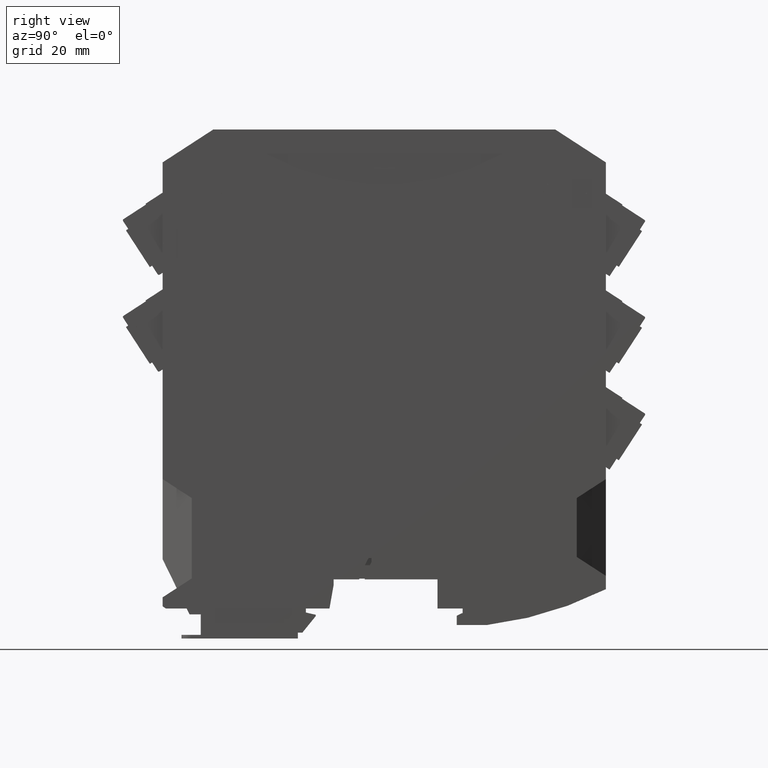
[diagram: clean part render]
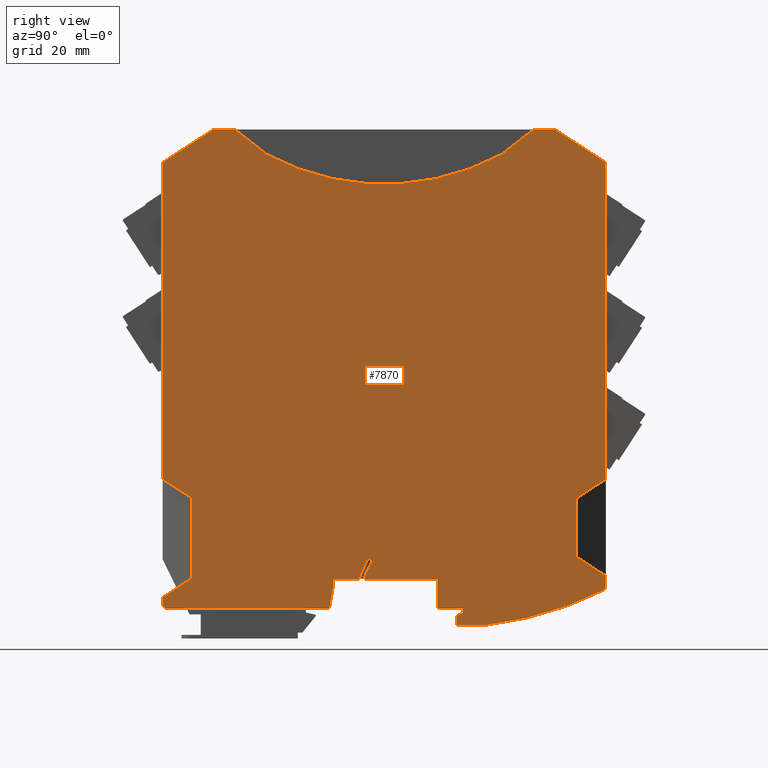
[diagram: same view with one face highlighted and labeled with its STEP entity id]
A machine part, right view. The second image highlights one B-rep face of the part: STEP entity #7870.
In plain terms, the highlighted planar face has unit normal (1, -0, -0).
Its self-contained STEP definition (entity closure, byte-faithful):
#680=CARTESIAN_POINT('',(12.5999992226559,46.5900000002596,
16.939301579675));
#690=VERTEX_POINT('',#680);
#720=CARTESIAN_POINT('',(12.5999992226559,67.0000000002411,
5.69999999991688));
#730=DIRECTION('',(1.,-5.21592700555424E-36,-2.28384227807285E-18));
#740=DIRECTION('',(-4.191076862855E-30,1.,-1.83510136361891E-12));
#750=AXIS2_PLACEMENT_3D('',#720,#730,#740);
#760=CIRCLE('',#750,23.3);
#770=CARTESIAN_POINT('',(12.5999992226559,45.149590168176,
13.7900920989472));
#780=VERTEX_POINT('',#770);
#790=EDGE_CURVE('',#690,#780,#760,.T.);
#1060=CARTESIAN_POINT('',(12.5999992226559,92.4999999996257,
18.2211493557559));
#1070=VERTEX_POINT('',#1060);
#1160=CARTESIAN_POINT('',(12.5999992226559,99.0000000003781,
14.0000000373745));
#1170=VERTEX_POINT('',#1160);
#1200=CARTESIAN_POINT('',(12.5999992226559,49.5000000003095,
46.1456756156977));
#1210=DIRECTION('',(1.24386760884534E-18,-0.838670570151032,
0.544639031618689));
#1220=VECTOR('',#1210,1.);
#1230=LINE('',#1200,#1220);
#1240=EDGE_CURVE('',#1170,#1070,#1230,.T.);
#5070=CARTESIAN_POINT('',(12.5999992226559,49.5000000000242,
70.3846654518157));
#5080=DIRECTION('',(1.,-5.21592700555424E-36,-2.28384227807285E-18));
#5090=DIRECTION('',(-4.4182643184979E-30,1.,-1.93457734662532E-12));
#5100=AXIS2_PLACEMENT_3D('',#5070,#5080,#5090);
#5110=PLANE('',#5100);
#5120=CARTESIAN_POINT('',(12.5999992226559,49.5000000004843,
138.507370060058));
#5130=DIRECTION('',(1.24386965445133E-18,0.838670567946785,
0.544639035012931));
#5140=VECTOR('',#5130,1.);
#5150=LINE('',#5120,#5140);
#5160=CARTESIAN_POINT('',(12.5999992226559,1.1974776725765E-10,
106.361694196724));
#5170=VERTEX_POINT('',#5160);
#5180=CARTESIAN_POINT('',(12.5999992226559,11.3000000004245,
113.700000000014));
#5190=VERTEX_POINT('',#5180);
#5200=EDGE_CURVE('',#5170,#5190,#5150,.T.);
#5210=ORIENTED_EDGE('',*,*,#5200,.F.);
#5220=CARTESIAN_POINT('',(12.5999992226559,49.5000000003095,
113.699999999944));
#5230=DIRECTION('',(-4.19106999653817E-30,1.,-1.83510136361891E-12));
#5240=VECTOR('',#5230,1.);
#5250=LINE('',#5220,#5240);
#5260=CARTESIAN_POINT('',(12.5999992226559,16.1795783242839,
113.700000000005));
#5270=VERTEX_POINT('',#5260);
#5280=EDGE_CURVE('',#5190,#5270,#5250,.T.);
#5290=ORIENTED_EDGE('',*,*,#5280,.F.);
#5300=CARTESIAN_POINT('',(12.5999992226559,49.5000000003095,
87.6672334752794));
#5310=DIRECTION('',(1.40607140273701E-18,-0.788010753605531,
0.615661475327183));
#5320=VECTOR('',#5310,1.);
#5330=LINE('',#5300,#5320);
#5340=CARTESIAN_POINT('',(12.5999992226559,23.1552602197003,
108.249999999974));
#5350=VERTEX_POINT('',#5340);
#5360=EDGE_CURVE('',#5350,#5270,#5330,.T.);
#5370=ORIENTED_EDGE('',*,*,#5360,.T.);
#5380=CARTESIAN_POINT('',(12.5999992226559,49.5000000003095,
87.667233475242));
#5390=DIRECTION('',(-1.40607140273701E-18,0.788010753605531,
-0.615661475327183));
#5400=VECTOR('',#5390,1.);
#5410=LINE('',#5380,#5400);
#5420=CARTESIAN_POINT('',(12.5999992226559,23.2192573012936,
108.199999999986));
#5430=VERTEX_POINT('',#5420);
#5440=EDGE_CURVE('',#5350,#5430,#5410,.T.);
#5450=ORIENTED_EDGE('',*,*,#5440,.F.);
#5460=CARTESIAN_POINT('',(12.5999992226559,49.5000000003042,
156.393092299507));
#5470=DIRECTION('',(-1.,5.21592700555424E-36,2.28384227807285E-18));
#5480=DIRECTION('',(-1.13593727821452E-31,-1.,-4.97357076646706E-14));
#5490=AXIS2_PLACEMENT_3D('',#5460,#5470,#5480);
#5500=CIRCLE('',#5490,54.8930922995028);
#5510=CARTESIAN_POINT('',(12.5999992226559,75.7980109545857,
108.209420770137));
#5520=VERTEX_POINT('',#5510);
#5530=EDGE_CURVE('',#5520,#5430,#5500,.T.);
#5540=ORIENTED_EDGE('',*,*,#5530,.T.);
#5550=CARTESIAN_POINT('',(12.5999992226559,49.5000000003095,
87.6631628058868));
#5560=DIRECTION('',(1.40607140273175E-18,0.788010753607329,
0.615661475324882));
#5570=VECTOR('',#5560,1.);
#5580=LINE('',#5550,#5570);
#5590=CARTESIAN_POINT('',(12.5999992226559,75.8499500002824,
108.249999999994));
#5600=VERTEX_POINT('',#5590);
#5610=EDGE_CURVE('',#5520,#5600,#5580,.T.);
#5620=ORIENTED_EDGE('',*,*,#5610,.F.);
#5630=CARTESIAN_POINT('',(12.5999992226559,49.5000000003095,
87.6631628058867));
#5640=DIRECTION('',(-1.40607140273175E-18,-0.788010753607329,
-0.615661475324882));
#5650=VECTOR('',#5640,1.);
#5660=LINE('',#5630,#5650);
#5670=CARTESIAN_POINT('',(12.5999992226559,82.8256318956058,
113.699999999883));
#5680=VERTEX_POINT('',#5670);
#5690=EDGE_CURVE('',#5680,#5600,#5660,.T.);
#5700=ORIENTED_EDGE('',*,*,#5690,.T.);
#5710=CARTESIAN_POINT('',(12.5999992226559,87.700000000391,
113.699999999874));
#5720=VERTEX_POINT('',#5710);
#5730=EDGE_CURVE('',#5680,#5720,#5250,.T.);
#5740=ORIENTED_EDGE('',*,*,#5730,.F.);
#5750=CARTESIAN_POINT('',(12.5999992226559,49.5000000003095,
138.507370060177));
#5760=DIRECTION('',(1.24386761660573E-18,-0.838670567944371,
0.544639035016649));
#5770=VECTOR('',#5760,1.);
#5780=LINE('',#5750,#5770);
#5790=CARTESIAN_POINT('',(12.5999992226559,99.0000000001657,
106.361694196857));
#5800=VERTEX_POINT('',#5790);
#5810=EDGE_CURVE('',#5800,#5720,#5780,.T.);
#5820=ORIENTED_EDGE('',*,*,#5810,.T.);
#5830=CARTESIAN_POINT('',(12.5999992226559,99.0000000005153,
-45.6999999999939));
#5840=DIRECTION('',(2.28384227811265E-18,-2.29927362408618E-12,1.));
#5850=VECTOR('',#5840,1.);
#5860=LINE('',#5830,#5850);
#5870=CARTESIAN_POINT('',(12.5999992226559,99.0000000003284,
35.5999999996861));
#5880=VERTEX_POINT('',#5870);
#5890=EDGE_CURVE('',#5880,#5800,#5860,.T.);
#5900=ORIENTED_EDGE('',*,*,#5890,.T.);
#5910=CARTESIAN_POINT('',(12.5999992226559,49.5000000003095,
3.45432413651742));
#5920=DIRECTION('',(1.24386761659875E-18,0.838670567946355,
0.544639035013593));
#5930=VECTOR('',#5920,1.);
#5940=LINE('',#5910,#5930);
#5950=CARTESIAN_POINT('',(12.5999992226559,92.4999999996498,
31.3788506436073));
#5960=VERTEX_POINT('',#5950);
#5970=EDGE_CURVE('',#5960,#5880,#5940,.T.);
#5980=ORIENTED_EDGE('',*,*,#5970,.T.);
#5990=CARTESIAN_POINT('',(12.599999222115,92.5000000004453,
-45.6999999999939));
#6000=DIRECTION('',(-1.96778369713401E-12,1.57319602239206E-12,-1.));
#6010=VECTOR('',#6000,1.);
#6020=LINE('',#5990,#6010);
#6030=EDGE_CURVE('',#5960,#1070,#6020,.T.);
#6040=ORIENTED_EDGE('',*,*,#6030,.F.);
#6050=ORIENTED_EDGE('',*,*,#1240,.T.);
#6060=CARTESIAN_POINT('',(12.5999992226559,99.000000000385,
11.0077156020573));
#6070=VERTEX_POINT('',#6060);
#6080=EDGE_CURVE('',#6070,#1170,#5860,.T.);
#6090=ORIENTED_EDGE('',*,*,#6080,.T.);
#6100=CARTESIAN_POINT('',(12.5999992226559,63.0000000001872,
82.4499999999246));
#6110=DIRECTION('',(-1.,5.21592700555424E-36,2.28384227807285E-18));
#6120=DIRECTION('',(4.191076862855E-30,-1.,1.83510136361891E-12));
#6130=AXIS2_PLACEMENT_3D('',#6100,#6110,#6120);
#6140=CIRCLE('',#6130,80.);
#6150=CARTESIAN_POINT('',(12.5999992226559,72.3646943356781,
2.99999999990686));
#6160=VERTEX_POINT('',#6150);
#6170=EDGE_CURVE('',#6070,#6160,#6140,.T.);
#6180=ORIENTED_EDGE('',*,*,#6170,.F.);
#6190=CARTESIAN_POINT('',(12.5999992226559,49.5000000002384,
2.99999999994881));
#6200=DIRECTION('',(-4.191076862855E-30,1.,-1.83510136361891E-12));
#6210=VECTOR('',#6200,1.);
#6220=LINE('',#6190,#6210);
#6230=CARTESIAN_POINT('',(12.5999992226559,65.7000000002348,
2.99999999991908));
#6240=VERTEX_POINT('',#6230);
#6250=EDGE_CURVE('',#6240,#6160,#6220,.T.);
#6260=ORIENTED_EDGE('',*,*,#6250,.T.);
#6270=CARTESIAN_POINT('',(12.5999992226559,65.7000000001454,
-45.7000000000849));
#6280=DIRECTION('',(-2.28384227807285E-18,-1.83510136361891E-12,-1.));
#6290=VECTOR('',#6280,1.);
#6300=LINE('',#6270,#6290);
#6310=CARTESIAN_POINT('',(12.5999992226559,65.7000000002386,
5.09380004431649));
#6320=VERTEX_POINT('',#6310);
#6330=EDGE_CURVE('',#6320,#6240,#6300,.T.);
#6340=ORIENTED_EDGE('',*,*,#6330,.T.);
#6350=CARTESIAN_POINT('',(12.5999992226559,49.5000000002279,
-2.46038401776329));
#6360=DIRECTION('',(-9.65193453645269E-19,-0.906307787037426,
-0.422618261739036));
#6370=VECTOR('',#6360,1.);
#6380=LINE('',#6350,#6370);
#6390=CARTESIAN_POINT('',(12.5999992226559,67.0000000002397,
5.69999999991562));
#6400=VERTEX_POINT('',#6390);
#6410=EDGE_CURVE('',#6400,#6320,#6380,.T.);
#6420=ORIENTED_EDGE('',*,*,#6410,.T.);
#6430=CARTESIAN_POINT('',(12.5999992226559,67.0000000001454,
-45.7000000000874));
#6440=DIRECTION('',(-2.28384227807285E-18,-1.83510136361891E-12,-1.));
#6450=VECTOR('',#6440,1.);
#6460=LINE('',#6430,#6450);
#6470=CARTESIAN_POINT('',(12.5999992226559,67.0000000002416,
6.69999999991909));
#6480=VERTEX_POINT('',#6470);
#6490=EDGE_CURVE('',#6480,#6400,#6460,.T.);
#6500=ORIENTED_EDGE('',*,*,#6490,.T.);
#6510=CARTESIAN_POINT('',(12.5999992226559,49.5000000002456,
6.6999999999496));
#6520=DIRECTION('',(-3.98011708261516E-30,1.,-1.7427308079701E-12));
#6530=VECTOR('',#6520,1.);
#6540=LINE('',#6510,#6530);
#6550=CARTESIAN_POINT('',(12.5999992226559,61.4000000002423,
6.69999999992885));
#6560=VERTEX_POINT('',#6550);
#6570=EDGE_CURVE('',#6560,#6480,#6540,.T.);
#6580=ORIENTED_EDGE('',*,*,#6570,.T.);
#6590=CARTESIAN_POINT('',(12.5999992226559,61.4000000001461,
-45.7000000000766));
#6600=DIRECTION('',(-2.28384227807285E-18,-1.83510136361891E-12,-1.));
#6610=VECTOR('',#6600,1.);
#6620=LINE('',#6590,#6610);
#6630=CARTESIAN_POINT('',(12.5999992226559,61.4000000002542,
13.1999999999263));
#6640=VERTEX_POINT('',#6630);
#6650=EDGE_CURVE('',#6640,#6560,#6620,.T.);
#6660=ORIENTED_EDGE('',*,*,#6650,.T.);
#6670=CARTESIAN_POINT('',(12.5999992226559,49.5000000002582,
13.1999999999481));
#6680=DIRECTION('',(-4.191076862855E-30,1.,-1.83510136361891E-12));
#6690=VECTOR('',#6680,1.);
#6700=LINE('',#6670,#6690);
#6710=CARTESIAN_POINT('',(12.5999992226559,45.149590168176,
13.1999999999561));
#6720=VERTEX_POINT('',#6710);
#6730=EDGE_CURVE('',#6720,#6640,#6700,.T.);
#6740=ORIENTED_EDGE('',*,*,#6730,.T.);
#6750=CARTESIAN_POINT('',(12.5999992226559,45.149590168176,
-45.6999999999939));
#6760=DIRECTION('',(-2.28384227807285E-18,-2.21443425005644E-30,-1.));
#6770=VECTOR('',#6760,1.);
#6780=LINE('',#6750,#6770);
#6790=EDGE_CURVE('',#780,#6720,#6780,.T.);
#6800=ORIENTED_EDGE('',*,*,#6790,.T.);
#6810=ORIENTED_EDGE('',*,*,#790,.T.);
#6820=CARTESIAN_POINT('',(12.5999992226559,46.5900000001446,
-45.700000000048));
#6830=DIRECTION('',(2.28384227807285E-18,1.83510136361891E-12,1.));
#6840=VECTOR('',#6830,1.);
#6850=LINE('',#6820,#6840);
#6860=CARTESIAN_POINT('',(12.5999992226559,46.5900000002614,
17.9499999999543));
#6870=VERTEX_POINT('',#6860);
#6880=EDGE_CURVE('',#690,#6870,#6850,.T.);
#6890=ORIENTED_EDGE('',*,*,#6880,.F.);
#6900=CARTESIAN_POINT('',(12.5999992226559,49.5000000002673,
17.949999999949));
#6910=DIRECTION('',(-4.191076862855E-30,1.,-1.83510136361891E-12));
#6920=VECTOR('',#6910,1.);
#6930=LINE('',#6900,#6920);
#6940=CARTESIAN_POINT('',(12.5999992226559,46.0136353793961,
17.9499999999554));
#6950=VERTEX_POINT('',#6940);
#6960=EDGE_CURVE('',#6950,#6870,#6930,.T.);
#6970=ORIENTED_EDGE('',*,*,#6960,.T.);
#6980=CARTESIAN_POINT('',(12.5999992226559,67.0000000002411,
5.69999999991688));
#6990=DIRECTION('',(1.,-5.21592700555424E-36,-2.28384227807285E-18));
#7000=DIRECTION('',(-4.191076862855E-30,1.,-1.83510136361891E-12));
#7010=AXIS2_PLACEMENT_3D('',#6980,#6990,#7000);
#7020=CIRCLE('',#7010,24.3);
#7030=CARTESIAN_POINT('',(12.5999992226559,43.8863676591447,
13.1999999999584));
#7040=VERTEX_POINT('',#7030);
#7050=EDGE_CURVE('',#6950,#7040,#7020,.T.);
#7060=ORIENTED_EDGE('',*,*,#7050,.F.);
#7070=CARTESIAN_POINT('',(12.5999992226559,49.5000000002582,
13.1999999999481));
#7080=DIRECTION('',(-4.191076862855E-30,1.,-1.83510136361891E-12));
#7090=VECTOR('',#7080,1.);
#7100=LINE('',#7070,#7090);
#7110=CARTESIAN_POINT('',(12.5999992226559,38.2000000002177,
13.1999999999688));
#7120=VERTEX_POINT('',#7110);
#7130=EDGE_CURVE('',#7120,#7040,#7100,.T.);
#7140=ORIENTED_EDGE('',*,*,#7130,.T.);
#7150=CARTESIAN_POINT('',(12.5999992226559,38.2000000001046,
-45.7000000000317));
#7160=DIRECTION('',(-2.28384227807285E-18,-1.92039736359231E-12,-1.));
#7170=VECTOR('',#7160,1.);
#7180=LINE('',#7150,#7170);
#7190=CARTESIAN_POINT('',(12.5999992226559,38.2000000002154,
11.9999999997522));
#7200=VERTEX_POINT('',#7190);
#7210=EDGE_CURVE('',#7120,#7200,#7180,.T.);
#7220=ORIENTED_EDGE('',*,*,#7210,.F.);
#7230=CARTESIAN_POINT('',(12.5999992226559,28.0259332132613,
-45.7000000000121));
#7240=DIRECTION('',(-2.24914558210242E-18,-0.173648177668871,
-0.984807753011866));
#7250=VECTOR('',#7240,1.);
#7260=LINE('',#7230,#7250);
#7270=CARTESIAN_POINT('',(12.5999992226559,37.2654670024889,
6.69999999997437));
#7280=VERTEX_POINT('',#7270);
#7290=EDGE_CURVE('',#7200,#7280,#7260,.T.);
#7300=ORIENTED_EDGE('',*,*,#7290,.F.);
#7310=CARTESIAN_POINT('',(12.5999992226559,49.5000000003095,
6.69999999995087));
#7320=DIRECTION('',(-4.3858722882793E-30,1.,-1.92039736359231E-12));
#7330=VECTOR('',#7320,1.);
#7340=LINE('',#7310,#7330);
#7350=CARTESIAN_POINT('',(12.5999992226559,0.730742699295661,
6.70000000004453));
#7360=VERTEX_POINT('',#7350);
#7370=EDGE_CURVE('',#7360,#7280,#7340,.T.);
#7380=ORIENTED_EDGE('',*,*,#7370,.T.);
#7390=CARTESIAN_POINT('',(12.5999992226559,49.5000000003095,
-24.9711260059805));
#7400=DIRECTION('',(1.24386761660599E-18,-0.838670567944297,
0.544639035016763));
#7410=VECTOR('',#7400,1.);
#7420=LINE('',#7390,#7410);
#7430=CARTESIAN_POINT('',(12.5999992226559,-4.76703121421451E-11,
7.1745498576739));
#7440=VERTEX_POINT('',#7430);
#7450=EDGE_CURVE('',#7360,#7440,#7420,.T.);
#7460=ORIENTED_EDGE('',*,*,#7450,.F.);
#7470=CARTESIAN_POINT('',(12.5999992226559,-1.62927449309791E-10,
-45.6999999999939));
#7480=DIRECTION('',(2.28384227811265E-18,1.83510136361891E-12,1.));
#7490=VECTOR('',#7480,1.);
#7500=LINE('',#7470,#7490);
#7510=CARTESIAN_POINT('',(12.5999992226559,-4.74926764582051E-11,
9.20000000000948));
#7520=VERTEX_POINT('',#7510);
#7530=EDGE_CURVE('',#7440,#7520,#7500,.T.);
#7540=ORIENTED_EDGE('',*,*,#7530,.F.);
#7550=CARTESIAN_POINT('',(12.5999992226559,49.5000000003095,
41.3456758635122));
#7560=DIRECTION('',(-1.24386761660187E-18,-0.83867056794547,
-0.544639035014957));
#7570=VECTOR('',#7560,1.);
#7580=LINE('',#7550,#7570);
#7590=CARTESIAN_POINT('',(12.5999992226346,6.50000000086149,
13.4211493563828));
#7600=VERTEX_POINT('',#7590);
#7610=EDGE_CURVE('',#7600,#7520,#7580,.T.);
#7620=ORIENTED_EDGE('',*,*,#7610,.T.);
#7630=CARTESIAN_POINT('',(12.5999992222869,6.50000000015073,
-45.6999999999939));
#7640=DIRECTION('',(2.28384227817825E-18,1.83510136361891E-12,1.));
#7650=VECTOR('',#7640,1.);
#7660=LINE('',#7630,#7650);
#7670=CARTESIAN_POINT('',(12.5999992226559,6.50000000093136,
31.378850643978));
#7680=VERTEX_POINT('',#7670);
#7690=EDGE_CURVE('',#7600,#7680,#7660,.T.);
#7700=ORIENTED_EDGE('',*,*,#7690,.F.);
#7710=CARTESIAN_POINT('',(12.5999992226559,49.5000000003095,
3.45432413606024));
#7720=DIRECTION('',(-1.24386761661498E-18,0.838670567941741,
-0.544639035020699));
#7730=VECTOR('',#7720,1.);
#7740=LINE('',#7710,#7730);
#7750=CARTESIAN_POINT('',(12.5999992226559,-1.36779476633819E-11,
35.6000000000229));
#7760=VERTEX_POINT('',#7750);
#7770=EDGE_CURVE('',#7760,#7680,#7740,.T.);
#7780=ORIENTED_EDGE('',*,*,#7770,.T.);
#7790=CARTESIAN_POINT('',(12.5999992226559,-1.66863856065902E-10,
-45.6999999999939));
#7800=DIRECTION('',(2.28384227811265E-18,1.88483935512212E-12,1.));
#7810=VECTOR('',#7800,1.);
#7820=LINE('',#7790,#7810);
#7830=EDGE_CURVE('',#7760,#5170,#7820,.T.);
#7840=ORIENTED_EDGE('',*,*,#7830,.F.);
#7850=EDGE_LOOP('',(#7840,#7780,#7700,#7620,#7540,#7460,#7380,#7300,
#7220,#7140,#7060,#6970,#6890,#6810,#6800,#6740,#6660,#6580,#6500,#6420,
#6340,#6260,#6180,#6090,#6050,#6040,#5980,#5900,#5820,#5740,#5700,#5620,
#5540,#5450,#5370,#5290,#5210));
#7860=FACE_OUTER_BOUND('',#7850,.T.);
#7870=ADVANCED_FACE('',(#7860),#5110,.T.);